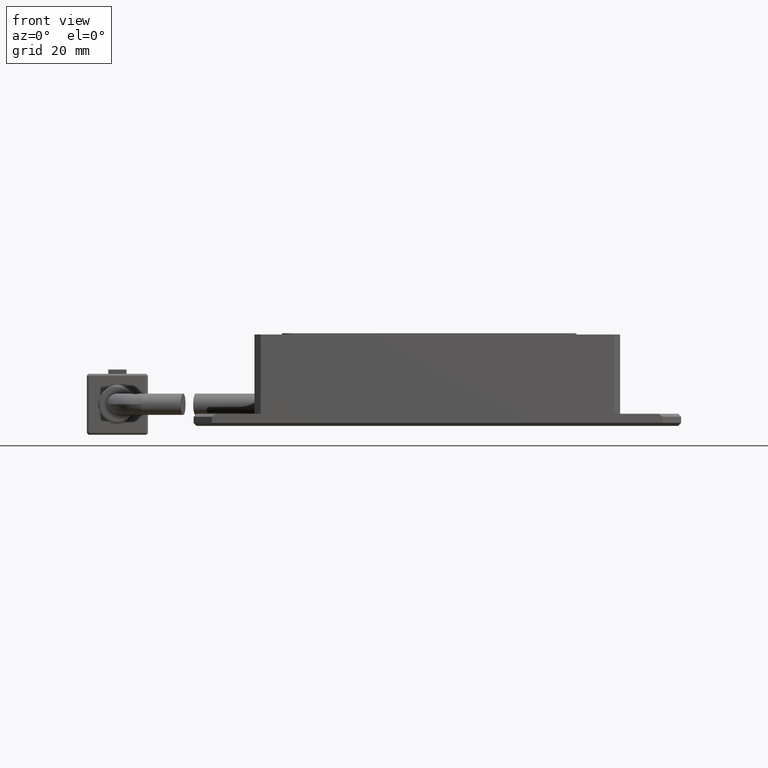
[diagram: clean part render]
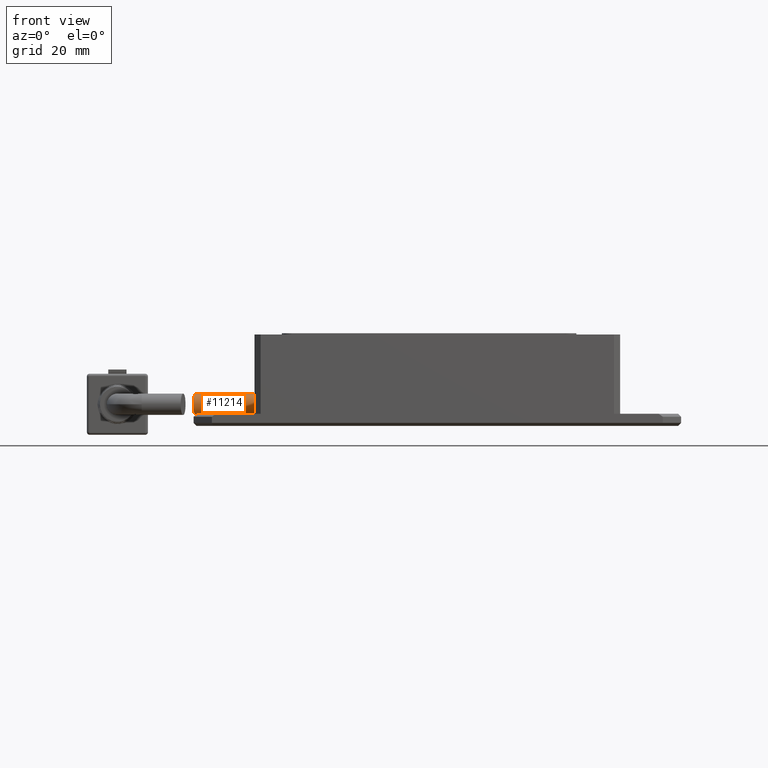
[diagram: same view with one face highlighted and labeled with its STEP entity id]
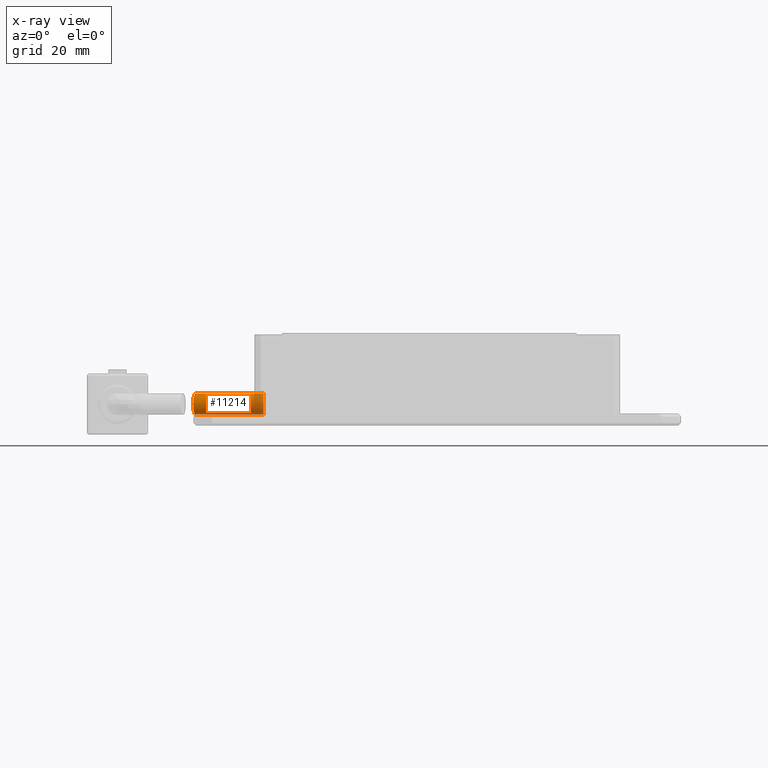
[diagram: x-ray of the same camera — body ghosted, the highlighted face saturated]
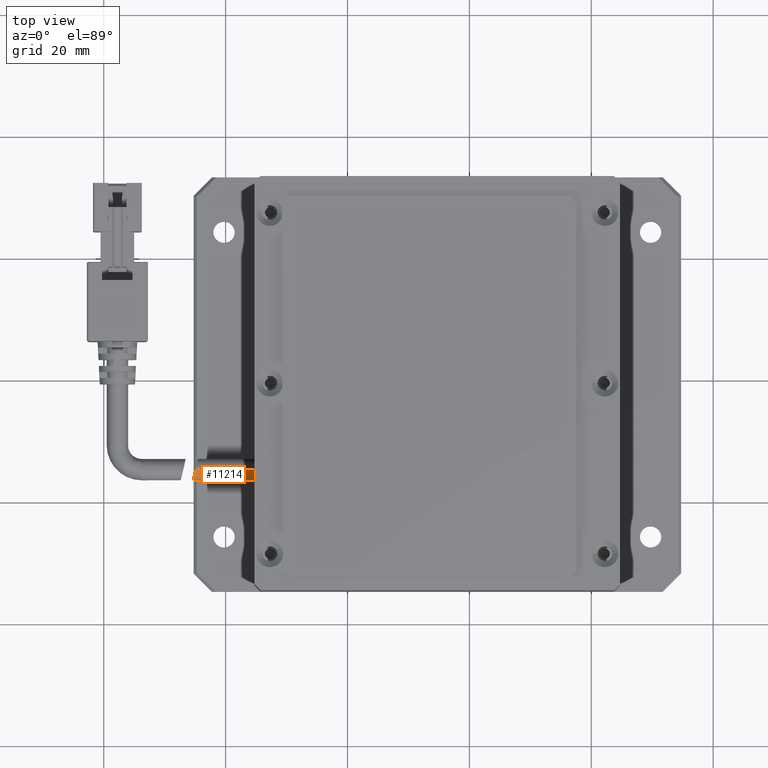
[diagram: same view with one face highlighted and labeled with its STEP entity id]
A machine part, front view. The second image highlights one B-rep face of the part: STEP entity #11214.
The next image is the same camera in x-ray: the body ghosted, the highlighted face saturated — about 17% of this face is hidden behind the body in this view.
A second angle (top view) of the same face is appended — the face is thin or edge-on in the first view.
In plain terms, the highlighted cylindrical surface (edge-blend (fillet) strip) has radius 1.75 mm, axis along (1, 0, 0).
Its self-contained STEP definition (entity closure, byte-faithful):
#106 = DIRECTION ( 'NONE',  ( 0.0000000000000000000, 0.0000000000000000000, -1.000000000000000000 ) ) ;
#1808 = CARTESIAN_POINT ( 'NONE',  ( -44.95906266539264400, -14.87509505351709500, 3.288979390429493900 ) ) ;
#1849 = AXIS2_PLACEMENT_3D ( 'NONE', #27054, #8643, #30157 ) ;
#1937 = CARTESIAN_POINT ( 'NONE',  ( -45.32459926796782000, -16.39923051907792800, 1.436261959689503900 ) ) ;
#2057 = CARTESIAN_POINT ( 'NONE',  ( -44.95904534418038200, -14.87703423676080100, -0.2000000000045481000 ) ) ;
#3865 = ORIENTED_EDGE ( 'NONE', *, *, #34497, .T. ) ;
#4032 = CYLINDRICAL_SURFACE ( 'NONE', #4655, 1.750000000000000000 ) ;
#4655 = AXIS2_PLACEMENT_3D ( 'NONE', #39887, #24526, #106 ) ;
#4871 = CARTESIAN_POINT ( 'NONE',  ( -45.04090609701930200, -15.20507977748768800, 3.213215029891857800 ) ) ;
#5000 = CARTESIAN_POINT ( 'NONE',  ( -45.31216961568774300, -16.34183819506771600, 1.091029067913453600 ) ) ;
#5002 = VERTEX_POINT ( 'NONE', #37451 ) ;
#5290 = EDGE_LOOP ( 'NONE', ( #18666, #25641, #3865, #38911 ) ) ;
#5946 = CARTESIAN_POINT ( 'NONE',  ( -53.75773195876288900, -14.64910271095834900, 3.299999999995453200 ) ) ;
#6796 = DIRECTION ( 'NONE',  ( 1.000000000000000000, 6.162975822039154000E-033, 0.0000000000000000000 ) ) ;
#7522 = EDGE_CURVE ( 'NONE', #5002, #8861, #24661, .T. ) ;
#7944 = CARTESIAN_POINT ( 'NONE',  ( -45.11785643613203700, -15.51529433386138000, 3.074818962843333600 ) ) ;
#8074 = CARTESIAN_POINT ( 'NONE',  ( -45.28486609817300500, -16.21848533015306900, 0.7670927215201749400 ) ) ;
#8643 = DIRECTION ( 'NONE',  ( -1.000000000000000000, -6.162975822039154000E-033, -0.0000000000000000000 ) ) ;
#8861 = VERTEX_POINT ( 'NONE', #13830 ) ;
#8867 = DIRECTION ( 'NONE',  ( 1.000000000000000000, 6.162975822039154000E-033, 0.0000000000000000000 ) ) ;
#9947 = VECTOR ( 'NONE', #8867, 1000.000000000000000 ) ;
#10904 = LINE ( 'NONE', #5946, #9947 ) ;
#11009 = CARTESIAN_POINT ( 'NONE',  ( -45.18614194343128100, -15.79527579156863800, 2.877351546343218700 ) ) ;
#11133 = CARTESIAN_POINT ( 'NONE',  ( -45.24262687119424700, -16.03377216903485800, 0.4737220585521342800 ) ) ;
#11214 = ADVANCED_FACE ( 'NONE', ( #14996 ), #4032, .T. ) ;
#13830 = CARTESIAN_POINT ( 'NONE',  ( -44.90398654676764800, -14.64910271095835100, -0.2000000000045470400 ) ) ;
#14083 = CARTESIAN_POINT ( 'NONE',  ( -45.24209857837357900, -16.03149875725291200, 2.629241823448787300 ) ) ;
#14211 = CARTESIAN_POINT ( 'NONE',  ( -45.18631161402940700, -15.79597213294455600, 0.2231422518568475200 ) ) ;
#14996 = FACE_OUTER_BOUND ( 'NONE', #5290, .T. ) ;
#15757 = EDGE_CURVE ( 'NONE', #28852, #21740, #20768, .T. ) ;
#17025 = CARTESIAN_POINT ( 'NONE',  ( -44.90398654676764100, -14.64910271095834700, 3.299999999995453200 ) ) ;
#17081 = CARTESIAN_POINT ( 'NONE',  ( -33.75773195876288900, -14.64910271095834900, 3.299999999995453200 ) ) ;
#17161 = CARTESIAN_POINT ( 'NONE',  ( -45.28456362564819700, -16.21713982279598900, 2.335518077417985800 ) ) ;
#17291 = CARTESIAN_POINT ( 'NONE',  ( -45.11848439938565700, -15.51784158510343800, 0.02663054523193059500 ) ) ;
#18666 = ORIENTED_EDGE ( 'NONE', *, *, #26171, .F. ) ;
#20233 = CARTESIAN_POINT ( 'NONE',  ( -45.32451604672482400, -16.39884383619407500, 1.783325397076617000 ) ) ;
#20366 = CARTESIAN_POINT ( 'NONE',  ( -45.01509932674861900, -15.10115962117395200, -0.1557472476107492900 ) ) ;
#20768 = CIRCLE ( 'NONE', #1849, 1.750000000000000000 ) ;
#21740 = VERTEX_POINT ( 'NONE', #17081 ) ;
#23202 = CARTESIAN_POINT ( 'NONE',  ( -45.01363367995368500, -15.09560251602505900, 3.245806528855666800 ) ) ;
#23343 = CARTESIAN_POINT ( 'NONE',  ( -45.32212154112379900, -16.38766708901300700, 1.318912053493248800 ) ) ;
#23463 = CARTESIAN_POINT ( 'NONE',  ( -44.90398654676764800, -14.64910271095835100, -0.2000000000045470400 ) ) ;
#24526 = DIRECTION ( 'NONE',  ( 1.000000000000000000, 6.162975822039154000E-033, 0.0000000000000000000 ) ) ;
#24661 = B_SPLINE_CURVE_WITH_KNOTS ( 'NONE', 3,
 ( #17025, #38619, #1808, #23202, #4871, #26353, #7944, #29436, #11009, #32574, #14083, #35655, #17161, #38746, #20233, #1937, #23343, #5000, #26478, #8074, #29574, #11133, #32712, #14211, #35782, #17291, #38873, #20366, #2057, #23463 ),
 .UNSPECIFIED., .F., .F.,
 ( 4, 2, 2, 2, 2, 2, 2, 2, 2, 2, 2, 2, 2, 2, 4 ),
 ( 1.728756451104409800E-014, 0.0003467692703522336800, 0.0006935385406871798700, 0.001040307811022126100, 0.001387077081357072100, 0.001733846351692018400, 0.002080615622026964300, 0.002774154162696861700, 0.003120923433031809500, 0.003467692703366757300, 0.003814461973701705500, 0.004161231244036653300, 0.004508000514371601600, 0.004854769784706549800, 0.005548308325376445500 ),
 .UNSPECIFIED. ) ;
#25432 = CARTESIAN_POINT ( 'NONE',  ( -33.75773195876288900, -14.64910271095834900, -0.2000000000045470100 ) ) ;
#25641 = ORIENTED_EDGE ( 'NONE', *, *, #7522, .T. ) ;
#26171 = EDGE_CURVE ( 'NONE', #5002, #21740, #10904, .T. ) ;
#26353 = CARTESIAN_POINT ( 'NONE',  ( -45.09312723254867400, -15.41535973953879000, 3.127417161158263500 ) ) ;
#26478 = CARTESIAN_POINT ( 'NONE',  ( -45.30477399817765200, -16.30795088141063300, 0.9806772799963671100 ) ) ;
#27054 = CARTESIAN_POINT ( 'NONE',  ( -33.75773195876288900, -14.64910271095834900, 1.549999999995453000 ) ) ;
#28852 = VERTEX_POINT ( 'NONE', #25432 ) ;
#29182 = VECTOR ( 'NONE', #6796, 1000.000000000000000 ) ;
#29436 = CARTESIAN_POINT ( 'NONE',  ( -45.16426965327142500, -15.70484930446774300, 2.950271376315482600 ) ) ;
#29574 = CARTESIAN_POINT ( 'NONE',  ( -45.27225770760012600, -16.16252890670008200, 0.6638708528560104400 ) ) ;
#30157 = DIRECTION ( 'NONE',  ( 0.0000000000000000000, 0.0000000000000000000, -1.000000000000000000 ) ) ;
#32574 = CARTESIAN_POINT ( 'NONE',  ( -45.22496692932141800, -15.95825200785862600, 2.716920295788182800 ) ) ;
#32712 = CARTESIAN_POINT ( 'NONE',  ( -45.22550533735960700, -15.96052826812504800, 0.3855155806525220100 ) ) ;
#34497 = EDGE_CURVE ( 'NONE', #8861, #28852, #37377, .T. ) ;
#34527 = CARTESIAN_POINT ( 'NONE',  ( -53.75773195876288900, -14.64910271095834900, -0.2000000000045470100 ) ) ;
#35655 = CARTESIAN_POINT ( 'NONE',  ( -45.27193229417638100, -16.16109328200499800, 2.438631675870074100 ) ) ;
#35782 = CARTESIAN_POINT ( 'NONE',  ( -45.16483956037135500, -15.70719469820559800, 0.1514997055083320800 ) ) ;
#37377 = LINE ( 'NONE', #34527, #29182 ) ;
#37451 = CARTESIAN_POINT ( 'NONE',  ( -44.90398654676764100, -14.64910271095834700, 3.299999999995453200 ) ) ;
#38619 = CARTESIAN_POINT ( 'NONE',  ( -44.93151454970871600, -14.76306269569250800, 3.299999999994343500 ) ) ;
#38746 = CARTESIAN_POINT ( 'NONE',  ( -45.31443411049573200, -16.35133618069921000, 2.016923281407714300 ) ) ;
#38873 = CARTESIAN_POINT ( 'NONE',  ( -45.09329877281992800, -15.41605223679949300, -0.02706870665925746300 ) ) ;
#38911 = ORIENTED_EDGE ( 'NONE', *, *, #15757, .T. ) ;
#39887 = CARTESIAN_POINT ( 'NONE',  ( -53.75773195876288900, -14.64910271095834900, 1.549999999995453000 ) ) ;